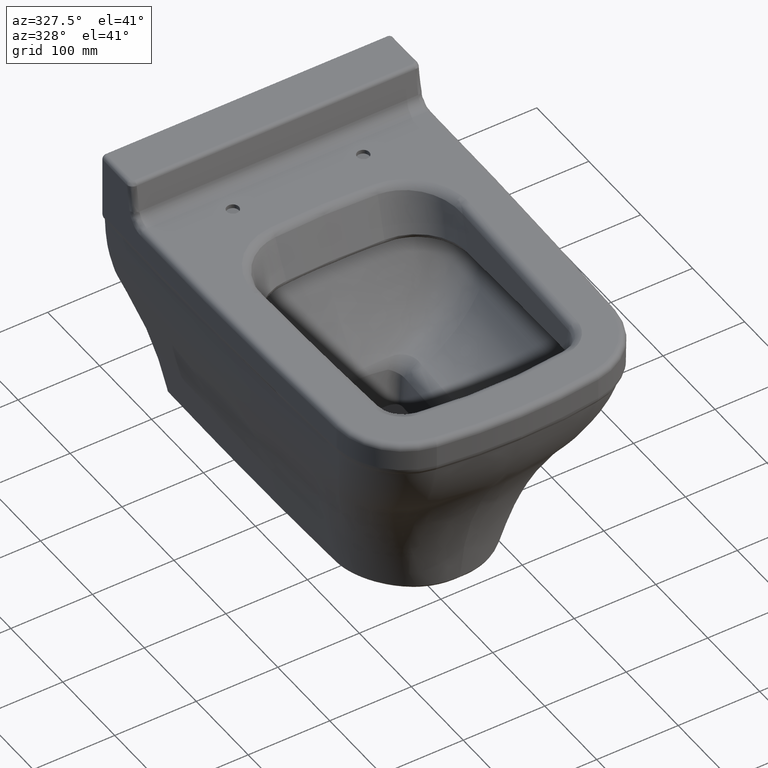
[diagram: clean part render]
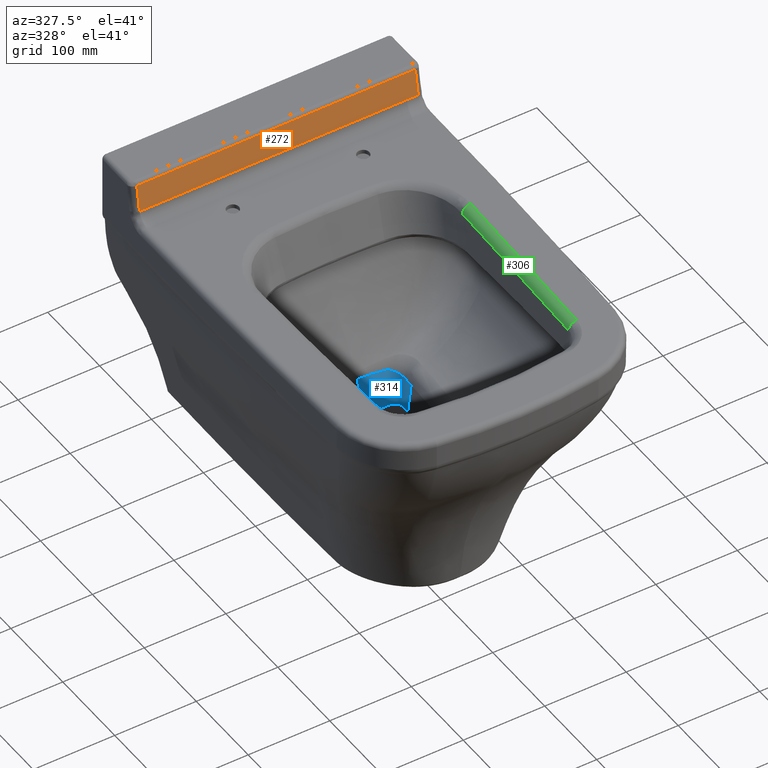
[diagram: same view with three faces highlighted in distinct colors, each labeled with its STEP entity id]
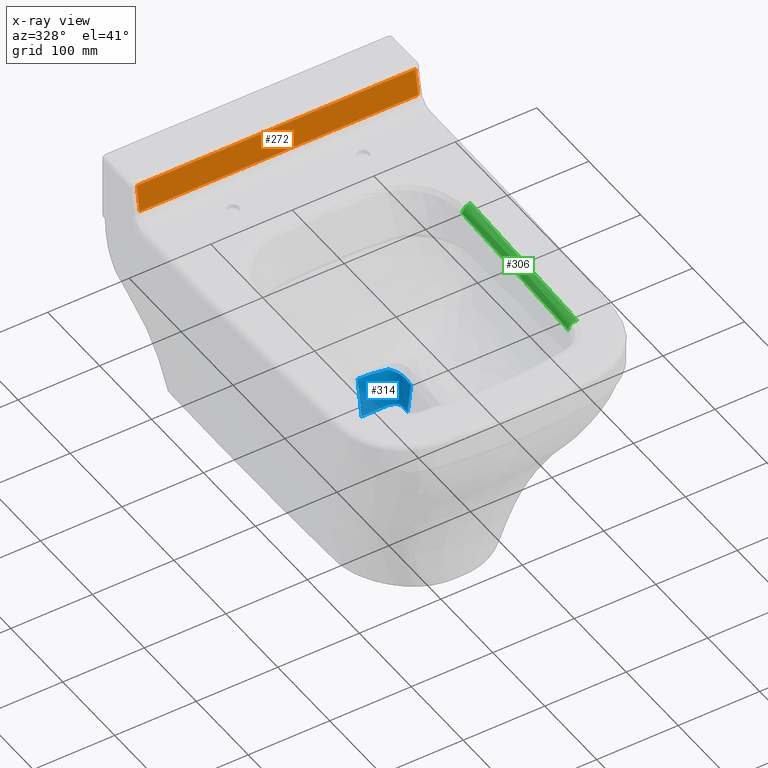
[diagram: x-ray of the same camera — body ghosted, the three highlighted faces saturated]
A machine part, auxiliary view with three faces highlighted in distinct colors.
The next image is the same camera in x-ray (body ghosted, the three faces saturated) — at least one of them is partly hidden behind the body in this view.
Their STEP definitions:

[orange] entity #272 — the highlighted planar face has unit normal (-0, -0.9847, 0.1745).
#146=PLANE('',#2093);
#163=LINE('',#3693,#180);
#164=LINE('',#3717,#181);
#180=VECTOR('',#2194,1.);
#181=VECTOR('',#2197,1.);
#272=ADVANCED_FACE('',(#432),#146,.T.);
#432=FACE_OUTER_BOUND('',#570,.T.);
#570=EDGE_LOOP('',(#964,#965,#966,#967));
#746=B_SPLINE_CURVE_WITH_KNOTS('',3,(#3815,#3816,#3817,#3818,#3819,#3820,
#3821,#3822),.UNSPECIFIED.,.F.,.F.,(4,2,2,4),(0.,0.182779933633327,0.566329030388373,
1.),.UNSPECIFIED.);
#747=B_SPLINE_CURVE_WITH_KNOTS('',3,(#3823,#3824,#3825,#3826,#3827,#3828,
#3829,#3830),.UNSPECIFIED.,.F.,.F.,(4,2,2,4),(0.,0.182779933633327,0.566329030388373,
1.),.UNSPECIFIED.);
#964=ORIENTED_EDGE('',*,*,#1760,.T.);
#965=ORIENTED_EDGE('',*,*,#1782,.T.);
#966=ORIENTED_EDGE('',*,*,#1765,.T.);
#967=ORIENTED_EDGE('',*,*,#1783,.F.);
#1571=VERTEX_POINT('',#3694);
#1572=VERTEX_POINT('',#3695);
#1575=VERTEX_POINT('',#3718);
#1576=VERTEX_POINT('',#3719);
#1760=EDGE_CURVE('',#1571,#1572,#163,.T.);
#1765=EDGE_CURVE('',#1575,#1576,#164,.T.);
#1782=EDGE_CURVE('',#1572,#1575,#746,.T.);
#1783=EDGE_CURVE('',#1571,#1576,#747,.T.);
#2093=AXIS2_PLACEMENT_3D('',#3831,#2214,#2215);
#2194=DIRECTION('',(1.,-1.0582002783065E-17,0.));
#2197=DIRECTION('',(-1.,1.0582002783065E-17,0.));
#2214=DIRECTION('',(-1.04197145053984E-17,-0.984663746457681,0.174462908413001));
#2215=DIRECTION('',(0.,-0.174462908413001,-0.984663746457681));
#3693=CARTESIAN_POINT('',(-89.2212001865866,-88.1421732707937,12.383056373805));
#3694=CARTESIAN_POINT('',(-170.89476954521,-88.1421732707937,12.383056373805));
#3695=CARTESIAN_POINT('',(170.89476954521,-88.1421732707937,12.383056373805));
#3717=CARTESIAN_POINT('',(-7.95741203852096E-18,-82.6505607587637,43.3775628816784));
#3718=CARTESIAN_POINT('',(170.855623070391,-82.6505607587638,43.3775628816784));
#3719=CARTESIAN_POINT('',(-170.855623070391,-82.6505607587638,43.3775628816784));
#3815=CARTESIAN_POINT('',(170.89476954521,-88.1421732707937,12.383056373805));
#3816=CARTESIAN_POINT('',(170.892379594061,-87.807587748343,14.2714476487394));
#3817=CARTESIAN_POINT('',(170.889967272698,-87.4730022307646,16.159838896175));
#3818=CARTESIAN_POINT('',(170.882498076617,-86.4363157183127,22.0108684046164));
#3819=CARTESIAN_POINT('',(170.877490338839,-85.7342147126216,25.973506726677));
#3820=CARTESIAN_POINT('',(170.866899117828,-84.2382627164066,34.4166177037504));
#3821=CARTESIAN_POINT('',(170.861293817652,-83.4444117304889,38.8970903327659));
#3822=CARTESIAN_POINT('',(170.855623070391,-82.6505607587638,43.3775628816784));
#3823=CARTESIAN_POINT('',(-170.89476954521,-88.1421732707937,12.383056373805));
#3824=CARTESIAN_POINT('',(-170.892379594061,-87.807587748343,14.2714476487394));
#3825=CARTESIAN_POINT('',(-170.889967272698,-87.4730022307646,16.159838896175));
#3826=CARTESIAN_POINT('',(-170.882498076617,-86.4363157183127,22.0108684046164));
#3827=CARTESIAN_POINT('',(-170.877490338839,-85.7342147126216,25.973506726677));
#3828=CARTESIAN_POINT('',(-170.866899117828,-84.2382627164066,34.4166177037504));
#3829=CARTESIAN_POINT('',(-170.861293817652,-83.4444117304889,38.8970903327659));
#3830=CARTESIAN_POINT('',(-170.855623070391,-82.6505607587638,43.3775628816784));
#3831=CARTESIAN_POINT('',(-3.40137575160707E-16,-86.7478419090374,20.2526233491547));

[blue] entity #314 — the highlighted face is a freeform B-spline surface patch.
#314=ADVANCED_FACE('',(#473),#409,.F.);
#409=B_SPLINE_SURFACE_WITH_KNOTS('',3,3,((#8382,#8383,#8384,#8385),(#8386,
#8387,#8388,#8389),(#8390,#8391,#8392,#8393),(#8394,#8395,#8396,#8397),
(#8398,#8399,#8400,#8401),(#8402,#8403,#8404,#8405),(#8406,#8407,#8408,
#8409),(#8410,#8411,#8412,#8413),(#8414,#8415,#8416,#8417),(#8418,#8419,
#8420,#8421),(#8422,#8423,#8424,#8425),(#8426,#8427,#8428,#8429),(#8430,
#8431,#8432,#8433),(#8434,#8435,#8436,#8437),(#8438,#8439,#8440,#8441),
(#8442,#8443,#8444,#8445),(#8446,#8447,#8448,#8449),(#8450,#8451,#8452,
#8453),(#8454,#8455,#8456,#8457),(#8458,#8459,#8460,#8461),(#8462,#8463,
#8464,#8465),(#8466,#8467,#8468,#8469),(#8470,#8471,#8472,#8473),(#8474,
#8475,#8476,#8477),(#8478,#8479,#8480,#8481),(#8482,#8483,#8484,#8485)),
 .UNSPECIFIED.,.F.,.F.,.F.,(4,1,1,1,1,1,1,1,1,1,1,1,1,1,1,1,1,1,1,1,1,1,
1,4),(4,4),(0.,0.25,0.4953125,0.5,0.5078125,0.515625,0.53125,0.5625,0.625,
0.640625,0.65625,0.6640625,0.671875,0.6875,0.71875,0.75,0.78125,0.8125,
0.828125,0.8359375,0.84375,0.859375,0.875,1.),(0.,1.),.UNSPECIFIED.);
#473=FACE_OUTER_BOUND('',#613,.T.);
#613=EDGE_LOOP('',(#1158,#1159,#1160,#1161,#1162));
#809=B_SPLINE_CURVE_WITH_KNOTS('',3,(#7376,#7377,#7378,#7379,#7380,#7381,
#7382,#7383,#7384,#7385,#7386,#7387,#7388,#7389,#7390,#7391,#7392,#7393,
#7394,#7395,#7396,#7397,#7398,#7399,#7400,#7401,#7402,#7403,#7404,#7405,
#7406,#7407,#7408,#7409,#7410,#7411,#7412,#7413,#7414,#7415,#7416,#7417,
#7418,#7419,#7420,#7421,#7422,#7423,#7424,#7425,#7426,#7427,#7428,#7429,
#7430,#7431,#7432,#7433,#7434,#7435,#7436,#7437,#7438),.UNSPECIFIED.,.F.,
 .F.,(4,1,1,1,1,1,2,2,1,1,1,2,2,1,2,2,2,1,1,2,2,1,2,2,2,2,1,1,2,2,1,1,1,
2,2,1,1,1,1,2,2,4),(0.,0.0625000000000528,0.0937500000000792,0.109375000000094,
0.1171875000001,0.121093750000104,0.123046875000107,0.125000000000109,0.140625000000119,
0.148437500000125,0.152343750000125,0.154296875000125,0.156250000000126,
0.171875000000123,0.179687500000122,0.187500000000121,0.250000000000114,
0.281250000000112,0.29687500000011,0.30468750000011,0.31250000000011,0.328125000000108,
0.335937500000107,0.343750000000106,0.3750000000001,0.437500000000089,0.453125000000086,
0.460937500000084,0.464843750000084,0.468750000000083,0.484375000000078,
0.492187500000076,0.496093750000075,0.498046875000074,0.500000000000073,
0.625000000000055,0.687500000000046,0.718750000000042,0.734375000000039,
0.742187500000038,0.750000000000037,1.),.UNSPECIFIED.);
#820=B_SPLINE_CURVE_WITH_KNOTS('',3,(#8295,#8296,#8297,#8298),
 .UNSPECIFIED.,.F.,.F.,(4,4),(0.,1.),.UNSPECIFIED.);
#821=B_SPLINE_CURVE_WITH_KNOTS('',3,(#8300,#8301,#8302,#8303,#8304,#8305),
 .UNSPECIFIED.,.F.,.F.,(4,2,4),(0.,1.82947137645916E-5,1.),
 .UNSPECIFIED.);
#822=B_SPLINE_CURVE_WITH_KNOTS('',3,(#8307,#8308,#8309,#8310,#8311,#8312,
#8313,#8314,#8315,#8316,#8317,#8318,#8319,#8320,#8321,#8322,#8323,#8324,
#8325,#8326,#8327,#8328,#8329,#8330,#8331,#8332,#8333,#8334,#8335,#8336,
#8337,#8338,#8339,#8340,#8341,#8342,#8343,#8344,#8345,#8346,#8347,#8348,
#8349,#8350,#8351,#8352,#8353,#8354,#8355,#8356,#8357,#8358,#8359,#8360,
#8361,#8362,#8363,#8364,#8365,#8366,#8367,#8368,#8369,#8370,#8371,#8372,
#8373,#8374,#8375,#8376),.UNSPECIFIED.,.F.,.F.,(4,2,2,1,2,2,2,2,2,2,1,1,
2,2,2,2,2,2,2,2,2,2,2,2,2,2,2,2,2,2,2,1,1,1,2,2,2,4),(0.,0.125000000000574,
0.125976562500572,0.126953125000571,0.128906250000565,0.132812500000556,
0.140625000000539,0.156250000000501,0.187500000000428,0.189453125000427,
0.191406250000427,0.195312500000427,0.203125000000423,0.218750000000417,
0.250000000000402,0.265625000000395,0.281250000000387,0.312500000000373,
0.375000000000345,0.378906250000343,0.382812500000341,0.390625000000338,
0.40625000000033,0.437500000000316,0.453125000000308,0.468750000000301,
0.472656250000299,0.476562500000297,0.484375000000293,0.500000000000284,
0.503906250000282,0.50781250000028,0.515625000000276,0.531250000000267,
0.562500000000249,0.625000000000214,0.750000000000142,1.),.UNSPECIFIED.);
#823=B_SPLINE_CURVE_WITH_KNOTS('',3,(#8378,#8379,#8380,#8381),
 .UNSPECIFIED.,.F.,.F.,(4,4),(0.,1.),.UNSPECIFIED.);
#1158=ORIENTED_EDGE('',*,*,#1887,.F.);
#1159=ORIENTED_EDGE('',*,*,#1888,.T.);
#1160=ORIENTED_EDGE('',*,*,#1889,.T.);
#1161=ORIENTED_EDGE('',*,*,#1890,.F.);
#1162=ORIENTED_EDGE('',*,*,#1875,.F.);
#1644=VERTEX_POINT('',#7439);
#1645=VERTEX_POINT('',#7440);
#1656=VERTEX_POINT('',#8299);
#1657=VERTEX_POINT('',#8306);
#1658=VERTEX_POINT('',#8377);
#1875=EDGE_CURVE('',#1644,#1645,#809,.T.);
#1887=EDGE_CURVE('',#1656,#1644,#820,.T.);
#1888=EDGE_CURVE('',#1656,#1657,#821,.T.);
#1889=EDGE_CURVE('',#1657,#1658,#822,.T.);
#1890=EDGE_CURVE('',#1645,#1658,#823,.T.);
#7376=CARTESIAN_POINT('',(43.9510565160675,-267.025828651887,-232.187247244781));
#7377=CARTESIAN_POINT('',(44.0106145617744,-265.399335401843,-232.187247256634));
#7378=CARTESIAN_POINT('',(44.0896047349921,-263.239126784244,-232.187247274486));
#7379=CARTESIAN_POINT('',(44.1636528702298,-261.208063097613,-232.187247293166));
#7380=CARTESIAN_POINT('',(44.1961501711362,-260.31482617944,-232.187247301751));
#7381=CARTESIAN_POINT('',(44.2112671299114,-259.898781451639,-232.18724730583));
#7382=CARTESIAN_POINT('',(44.2185426863794,-259.698402520559,-232.187247307813));
#7383=CARTESIAN_POINT('',(44.2216001556687,-259.614163714273,-232.18724730865));
#7384=CARTESIAN_POINT('',(44.2236249960082,-259.558368483073,-232.187247309206));
#7385=CARTESIAN_POINT('',(44.2232442151732,-259.568867493924,-232.1872473091));
#7386=CARTESIAN_POINT('',(44.2447129267237,-258.97713295086,-232.187247315009));
#7387=CARTESIAN_POINT('',(44.2676152907252,-258.347558886041,-232.187247321511));
#7388=CARTESIAN_POINT('',(44.2843201921117,-257.892015130799,-232.18724732631));
#7389=CARTESIAN_POINT('',(44.2901690119845,-257.733983083272,-232.187247327988));
#7390=CARTESIAN_POINT('',(44.2921391567542,-257.68119931221,-232.18724732855));
#7391=CARTESIAN_POINT('',(44.2933333660854,-257.649331075792,-232.18724732889));
#7392=CARTESIAN_POINT('',(44.2925158690865,-257.670820788402,-232.18724732866));
#7393=CARTESIAN_POINT('',(44.3090117491012,-257.235431995065,-232.187247333309));
#7394=CARTESIAN_POINT('',(44.3142188263255,-256.710071604559,-232.187247338876));
#7395=CARTESIAN_POINT('',(44.2942447593565,-256.267448214971,-232.187247343404));
#7396=CARTESIAN_POINT('',(44.2753329048898,-255.990751955449,-232.187247346183));
#7397=CARTESIAN_POINT('',(44.2678101853978,-255.899303726119,-232.187247347093));
#7398=CARTESIAN_POINT('',(44.0897645380459,-254.480282457143,-232.187247360666));
#7399=CARTESIAN_POINT('',(43.6797982214446,-253.316348535068,-232.187247369755));
#7400=CARTESIAN_POINT('',(42.6755069065073,-251.697576903282,-232.187247379624));
#7401=CARTESIAN_POINT('',(42.1008584859764,-250.960306947303,-232.187247383391));
#7402=CARTESIAN_POINT('',(41.3035554933313,-250.226361420177,-232.187247385808));
#7403=CARTESIAN_POINT('',(40.9346656746208,-249.93885678459,-232.187247386434));
#7404=CARTESIAN_POINT('',(40.6826972318919,-249.753196682526,-232.187247386762));
#7405=CARTESIAN_POINT('',(40.5291553929318,-249.647236141528,-232.187247386895));
#7406=CARTESIAN_POINT('',(40.2066870454773,-249.435180905794,-232.18724738708));
#7407=CARTESIAN_POINT('',(39.838928047631,-249.217722800546,-232.187247387049));
#7408=CARTESIAN_POINT('',(39.4032330741971,-248.992160391029,-232.187247386786));
#7409=CARTESIAN_POINT('',(39.0976728751105,-248.839984494846,-232.187247386572));
#7410=CARTESIAN_POINT('',(38.9103108388265,-248.750453495507,-232.187247386423));
#7411=CARTESIAN_POINT('',(38.2060933988345,-248.423721837506,-232.187247385835));
#7412=CARTESIAN_POINT('',(37.6143281004198,-248.187085107663,-232.187247385155));
#7413=CARTESIAN_POINT('',(35.8538329832385,-247.585578976684,-232.187247382648));
#7414=CARTESIAN_POINT('',(34.6382099061799,-247.302170544903,-232.187247380302));
#7415=CARTESIAN_POINT('',(33.0800162683116,-247.096722104613,-232.187247376476));
#7416=CARTESIAN_POINT('',(32.6159281676436,-247.046499047503,-232.187247375285));
#7417=CARTESIAN_POINT('',(32.0803895339097,-247.007875562086,-232.187247373803));
#7418=CARTESIAN_POINT('',(31.8521367231048,-246.995601942881,-232.187247373147));
#7419=CARTESIAN_POINT('',(31.700249015126,-246.988370486326,-232.187247372705));
#7420=CARTESIAN_POINT('',(31.5829210374721,-246.983767785553,-232.187247372357));
#7421=CARTESIAN_POINT('',(31.4122286300304,-246.977756178504,-232.187247371846));
#7422=CARTESIAN_POINT('',(31.0780090680987,-246.973064933425,-232.187247370756));
#7423=CARTESIAN_POINT('',(30.461656068092,-246.97200651008,-232.187247368849));
#7424=CARTESIAN_POINT('',(30.0968720236504,-246.972580972387,-232.187247367777));
#7425=CARTESIAN_POINT('',(29.9284058165101,-246.973063672085,-232.187247367297));
#7426=CARTESIAN_POINT('',(29.8133994143957,-246.973438027788,-232.187247366973));
#7427=CARTESIAN_POINT('',(29.7132229752946,-246.973816056689,-232.187247366696));
#7428=CARTESIAN_POINT('',(28.4864546373959,-246.978701499388,-232.187247363317));
#7429=CARTESIAN_POINT('',(25.7247022394341,-246.994882556527,-232.187247356862));
#7430=CARTESIAN_POINT('',(20.8403153982043,-247.029450316154,-232.187247355927));
#7431=CARTESIAN_POINT('',(17.9825363833542,-247.050656660876,-232.187247358206));
#7432=CARTESIAN_POINT('',(16.4497504773704,-247.062240449464,-232.187247360102));
#7433=CARTESIAN_POINT('',(15.7705787179719,-247.067415062336,-232.187247361082));
#7434=CARTESIAN_POINT('',(15.3128500974891,-247.070911500261,-232.187247361773));
#7435=CARTESIAN_POINT('',(15.0405710344007,-247.072997361373,-232.187247362204));
#7436=CARTESIAN_POINT('',(8.67583698664114,-247.12185784877,-232.187247372626));
#7437=CARTESIAN_POINT('',(3.7266035514137,-247.145566169599,-232.187247388661));
#7438=CARTESIAN_POINT('',(-2.53078970444309E-12,-247.14560294469,-232.187247398538));
#7439=CARTESIAN_POINT('',(43.9510565062086,-267.025828664825,-232.187247323901));
#7440=CARTESIAN_POINT('',(-2.54090002623263E-12,-247.145602944569,-232.187247398554));
#8295=CARTESIAN_POINT('',(48.1787059049565,-267.025828774914,-197.148258019723));
#8296=CARTESIAN_POINT('',(46.7694881416856,-267.025828686676,-208.827920937857));
#8297=CARTESIAN_POINT('',(45.3602703784148,-267.025828598437,-220.50758385599));
#8298=CARTESIAN_POINT('',(43.9510526151444,-267.025828510198,-232.18724677412));
#8299=CARTESIAN_POINT('',(48.1787119747464,-267.025828997154,-197.148258752097));
#8300=CARTESIAN_POINT('',(48.1787180444162,-267.025829222795,-197.148259484436));
#8301=CARTESIAN_POINT('',(48.1787187551105,-267.025809236191,-197.148259659303));
#8302=CARTESIAN_POINT('',(48.1787194658048,-267.025789249587,-197.14825983417));
#8303=CARTESIAN_POINT('',(48.2175664374091,-265.933309522958,-197.157818149797));
#8304=CARTESIAN_POINT('',(48.256315672053,-264.840844620471,-197.167183424051));
#8305=CARTESIAN_POINT('',(48.2949481258705,-263.748373912409,-197.176346346914));
#8306=CARTESIAN_POINT('',(48.2949481258705,-263.748373912409,-197.176346346914));
#8307=CARTESIAN_POINT('',(48.2949489360977,-263.748373884803,-197.176339639558));
#8308=CARTESIAN_POINT('',(48.4585307256057,-259.122470191991,-197.215151541565));
#8309=CARTESIAN_POINT('',(48.5801745834791,-256.378692473279,-197.161047899964));
#8310=CARTESIAN_POINT('',(48.6077168323598,-255.489133893405,-197.015481929566));
#8311=CARTESIAN_POINT('',(48.6096065683737,-255.423066457398,-197.004669304281));
#8312=CARTESIAN_POINT('',(48.611226871156,-255.350804571743,-196.992838207414));
#8313=CARTESIAN_POINT('',(48.6131804396549,-255.243114669827,-196.975201508961));
#8314=CARTESIAN_POINT('',(48.6137603657157,-255.137547721421,-196.957894651421));
#8315=CARTESIAN_POINT('',(48.6132362843666,-254.929277172605,-196.923720722652));
#8316=CARTESIAN_POINT('',(48.6106432028334,-254.794249498907,-196.901524485986));
#8317=CARTESIAN_POINT('',(48.5972569907029,-254.400826133772,-196.836694880834));
#8318=CARTESIAN_POINT('',(48.5808801549111,-254.15411501944,-196.795820625948));
#8319=CARTESIAN_POINT('',(48.5175167886649,-253.461406689663,-196.68023357953));
#8320=CARTESIAN_POINT('',(48.4566592534715,-253.062955397252,-196.612556552921));
#8321=CARTESIAN_POINT('',(48.2696999496198,-252.055320999559,-196.437659105077));
#8322=CARTESIAN_POINT('',(48.1442771038895,-251.633019046302,-196.358571124188));
#8323=CARTESIAN_POINT('',(48.0866931385724,-251.432037787057,-196.314369751253));
#8324=CARTESIAN_POINT('',(48.0674305797632,-251.365456575331,-196.299629645273));
#8325=CARTESIAN_POINT('',(48.0442398339998,-251.287119248325,-196.282012090214));
#8326=CARTESIAN_POINT('',(48.0089125709517,-251.169681467915,-196.255308395948));
#8327=CARTESIAN_POINT('',(47.9226890701459,-250.896177441942,-196.191058384321));
#8328=CARTESIAN_POINT('',(47.8422628981743,-250.662770392487,-196.132659329395));
#8329=CARTESIAN_POINT('',(47.6726715466794,-250.197698838012,-196.011425726443));
#8330=CARTESIAN_POINT('',(47.5479156988276,-249.889989641731,-195.924689318505));
#8331=CARTESIAN_POINT('',(47.1390496904736,-248.976639865002,-195.646749244833));
#8332=CARTESIAN_POINT('',(46.8203393193713,-248.380776843528,-195.437814469865));
#8333=CARTESIAN_POINT('',(46.2760572157695,-247.517786317331,-195.088999391165));
#8334=CARTESIAN_POINT('',(46.1375238919122,-247.314797562029,-195.0014069713));
#8335=CARTESIAN_POINT('',(45.7900125554473,-246.832384595547,-194.783584952938));
#8336=CARTESIAN_POINT('',(45.6070243968071,-246.594202139089,-194.670022381061));
#8337=CARTESIAN_POINT('',(45.0303504586997,-245.891289450704,-194.315390354903));
#8338=CARTESIAN_POINT('',(44.6091150517849,-245.439990043001,-194.06037633655));
#8339=CARTESIAN_POINT('',(43.2373675280938,-244.130011232966,-193.239648245982));
#8340=CARTESIAN_POINT('',(42.1757477474999,-243.317992578369,-192.618244002831));
#8341=CARTESIAN_POINT('',(40.9014187332074,-242.590165867805,-191.879421868571));
#8342=CARTESIAN_POINT('',(40.8808461097953,-242.578711004788,-191.867398284101));
#8343=CARTESIAN_POINT('',(40.7812811436802,-242.523130185914,-191.809312006458));
#8344=CARTESIAN_POINT('',(40.7301481015581,-242.494915929666,-191.779401400904));
#8345=CARTESIAN_POINT('',(40.5726372576091,-242.40913303306,-191.687067717608));
#8346=CARTESIAN_POINT('',(40.4621476283759,-242.350421327368,-191.622042762525));
#8347=CARTESIAN_POINT('',(40.1137509206552,-242.17087043952,-191.416565048111));
#8348=CARTESIAN_POINT('',(39.8589066778536,-242.04656228299,-191.265709261144));
#8349=CARTESIAN_POINT('',(39.0229718072889,-241.670832768887,-190.771573445031));
#8350=CARTESIAN_POINT('',(38.3698747840951,-241.416297154559,-190.386721921065));
#8351=CARTESIAN_POINT('',(37.2380160918362,-241.084049825735,-189.726529962355));
#8352=CARTESIAN_POINT('',(36.9293012098744,-241.011550539967,-189.573835867111));
#8353=CARTESIAN_POINT('',(36.2964438001907,-240.890246817793,-189.311611193849));
#8354=CARTESIAN_POINT('',(35.9984083206788,-240.850133358065,-189.217331890629));
#8355=CARTESIAN_POINT('',(35.650650742923,-240.818755894962,-189.145491969482));
#8356=CARTESIAN_POINT('',(35.6631561176294,-240.820053400801,-189.148797537901));
#8357=CARTESIAN_POINT('',(35.5827831467242,-240.813703010377,-189.135087384259));
#8358=CARTESIAN_POINT('',(35.5348173743694,-240.810110412228,-189.127349780165));
#8359=CARTESIAN_POINT('',(35.367550988549,-240.798441267184,-189.101490038156));
#8360=CARTESIAN_POINT('',(35.2248701709725,-240.789608888889,-189.080720907498));
#8361=CARTESIAN_POINT('',(34.70327573064,-240.760218700649,-189.007833064435));
#8362=CARTESIAN_POINT('',(34.230963504926,-240.735025066198,-188.945132832818));
#8363=CARTESIAN_POINT('',(33.4842735023253,-240.695929644879,-188.849162500714));
#8364=CARTESIAN_POINT('',(33.4313615777498,-240.693177325636,-188.842400509578));
#8365=CARTESIAN_POINT('',(33.2294090406404,-240.682675575581,-188.816598574718));
#8366=CARTESIAN_POINT('',(32.9267778117196,-240.666992566458,-188.77804978594));
#8367=CARTESIAN_POINT('',(32.2227252717143,-240.630885408312,-188.689181212582));
#8368=CARTESIAN_POINT('',(30.8229996379286,-240.560611076943,-188.515756887139));
#8369=CARTESIAN_POINT('',(29.6377068544408,-240.503681215065,-188.374495318303));
#8370=CARTESIAN_POINT('',(27.2866959106366,-240.394177582367,-188.101807001678));
#8371=CARTESIAN_POINT('',(25.745457602591,-240.326983399009,-187.933127909403));
#8372=CARTESIAN_POINT('',(21.2021765181826,-240.142436251853,-187.466299314903));
#8373=CARTESIAN_POINT('',(18.2806134267365,-240.042146400796,-187.207353391469));
#8374=CARTESIAN_POINT('',(9.85317521275636,-239.805909452469,-186.586363362683));
#8375=CARTESIAN_POINT('',(4.6852828870125,-239.735275533197,-186.380016227792));
#8376=CARTESIAN_POINT('',(-2.54108068146272E-12,-239.735243370674,-186.380085129835));
#8377=CARTESIAN_POINT('',(0.,-239.735278554243,-186.380078426285));
#8378=CARTESIAN_POINT('',(-2.54108068146272E-12,-253.134653698626,-295.294685706518));
#8379=CARTESIAN_POINT('',(-2.54108068146272E-12,-251.063238736494,-258.748354691095));
#8380=CARTESIAN_POINT('',(-2.54108068146272E-12,-246.583530232229,-222.338748140484));
#8381=CARTESIAN_POINT('',(-2.54108068146272E-12,-239.735243370674,-186.380085129834));
#8382=CARTESIAN_POINT('',(-2.54108068146272E-12,-238.899295365503,-182.053005643977));
#8383=CARTESIAN_POINT('',(-2.54108068146272E-12,-246.220092213004,-219.416588062466));
#8384=CARTESIAN_POINT('',(-2.54108068146272E-12,-250.980108721954,-257.281677523932));
#8385=CARTESIAN_POINT('',(-2.54108068146272E-12,-253.134653698626,-295.294685706518));
#8386=CARTESIAN_POINT('',(5.95047363679475,-238.899295613223,-182.053006908286));
#8387=CARTESIAN_POINT('',(5.29761741234418,-246.218783112791,-219.406777791552));
#8388=CARTESIAN_POINT('',(4.64347190301198,-250.981268587865,-257.291507787753));
#8389=CARTESIAN_POINT('',(3.98427375781378,-253.134653707264,-295.294685858898));
#8390=CARTESIAN_POINT('',(17.7398573460209,-239.021098606647,-182.053006644321));
#8391=CARTESIAN_POINT('',(15.7890569517263,-246.104111102974,-219.428493334374));
#8392=CARTESIAN_POINT('',(13.8370402451728,-250.845311345394,-257.322877546061));
#8393=CARTESIAN_POINT('',(11.878117511825,-253.189020711914,-295.294684781792));
#8394=CARTESIAN_POINT('',(29.6357989063872,-239.386445974404,-182.053005014041));
#8395=CARTESIAN_POINT('',(26.3718156880452,-245.922055341616,-219.50203304788));
#8396=CARTESIAN_POINT('',(23.1089614031843,-250.592671859347,-257.369643806041));
#8397=CARTESIAN_POINT('',(19.8451626831168,-253.352820567066,-295.294683641288));
#8398=CARTESIAN_POINT('',(35.7670452941764,-239.63751514205,-182.053004884589));
#8399=CARTESIAN_POINT('',(31.8267163441052,-245.851174377264,-219.545549308704));
#8400=CARTESIAN_POINT('',(27.8885549636648,-250.473469652023,-257.395468302203));
#8401=CARTESIAN_POINT('',(23.9523955154519,-253.465645320021,-295.29468293743));
#8402=CARTESIAN_POINT('',(36.2501754687973,-239.658211426845,-182.053004875805));
#8403=CARTESIAN_POINT('',(32.2565376068613,-245.846128563126,-219.548999321978));
#8404=CARTESIAN_POINT('',(28.2651484169659,-250.464346776006,-257.39750953107));
#8405=CARTESIAN_POINT('',(24.2759926317108,-253.474645402592,-295.294682881849));
#8406=CARTESIAN_POINT('',(36.9922631426215,-239.707567818439,-182.053004862513));
#8407=CARTESIAN_POINT('',(32.9170077500655,-245.849915751135,-219.554346410207));
#8408=CARTESIAN_POINT('',(28.8441242157473,-250.456090596705,-257.400661984487));
#8409=CARTESIAN_POINT('',(24.7738283948358,-253.488704964146,-295.294682795979));
#8410=CARTESIAN_POINT('',(38.2839931797237,-239.877920306059,-182.053004840657));
#8411=CARTESIAN_POINT('',(34.0682147560083,-245.912220426567,-219.563802212398));
#8412=CARTESIAN_POINT('',(29.8550191187042,-250.469504374287,-257.406209138705));
#8413=CARTESIAN_POINT('',(25.6450251314377,-253.513868458727,-295.2946826449));
#8414=CARTESIAN_POINT('',(40.819740104413,-240.496749884847,-182.053004802987));
#8415=CARTESIAN_POINT('',(36.3388255172326,-246.221203528618,-219.583067700457));
#8416=CARTESIAN_POINT('',(31.8608931223157,-250.588700027838,-257.417413645975));
#8417=CARTESIAN_POINT('',(27.3873548615695,-253.566394159086,-295.294682339968));
#8418=CARTESIAN_POINT('',(43.174516006861,-241.673590065002,-182.053004779134));
#8419=CARTESIAN_POINT('',(38.4888177288578,-246.901038276746,-219.602882126008));
#8420=CARTESIAN_POINT('',(33.8064407087473,-250.894272355799,-257.428793574536));
#8421=CARTESIAN_POINT('',(29.1295356315345,-253.623644346967,-295.294682031513));
#8422=CARTESIAN_POINT('',(44.9526713185606,-243.024212206899,-182.053004771026));
#8423=CARTESIAN_POINT('',(40.1715764056348,-247.711913359651,-219.620031117736));
#8424=CARTESIAN_POINT('',(35.3940282220761,-251.271373784614,-257.438608847967));
#8425=CARTESIAN_POINT('',(30.62273119625,-253.67572328454,-295.294681767477));
#8426=CARTESIAN_POINT('',(45.6498047240717,-243.640404810258,-182.053004769807));
#8427=CARTESIAN_POINT('',(40.8435107315491,-248.085999569926,-219.627194609864));
#8428=CARTESIAN_POINT('',(36.0408456364714,-251.447588704428,-257.442706042889));
#8429=CARTESIAN_POINT('',(31.2447296555125,-253.69946304349,-295.294681657641));
#8430=CARTESIAN_POINT('',(46.1790162825695,-244.163288747281,-182.053004770189));
#8431=CARTESIAN_POINT('',(41.3622475747965,-248.403587827445,-219.632930578416));
#8432=CARTESIAN_POINT('',(36.5491658805071,-251.595288274337,-257.445986691122));
#8433=CARTESIAN_POINT('',(31.7428540678132,-253.713610368429,-295.29468156995));
#8434=CARTESIAN_POINT('',(46.6884856033626,-244.705415863124,-182.053004771496));
#8435=CARTESIAN_POINT('',(41.8675230852862,-248.738276565278,-219.638668106036));
#8436=CARTESIAN_POINT('',(37.0503004339833,-251.7579486324,-257.449268732121));
#8437=CARTESIAN_POINT('',(32.2400561774126,-253.740581699303,-295.294681482404));
#8438=CARTESIAN_POINT('',(47.5262767071439,-245.702787759574,-182.053004776267));
#8439=CARTESIAN_POINT('',(42.7130507466994,-249.390730689497,-219.64870790849));
#8440=CARTESIAN_POINT('',(37.9036428490926,-252.12743517248,-257.455014554362));
#8441=CARTESIAN_POINT('',(33.101544704779,-253.89067560629,-295.294681329635));
#8442=CARTESIAN_POINT('',(48.5582814986356,-247.255952304112,-182.053004790486));
#8443=CARTESIAN_POINT('',(43.7882011425104,-250.498416215481,-219.663019632719));
#8444=CARTESIAN_POINT('',(39.0220069517582,-252.877948492057,-257.463221270337));
#8445=CARTESIAN_POINT('',(34.2634922179572,-254.374632292017,-295.294681113005));
#8446=CARTESIAN_POINT('',(49.5081487552619,-249.281853434445,-182.053004820382));
#8447=CARTESIAN_POINT('',(44.8085149690792,-252.064996506238,-219.680053580742));
#8448=CARTESIAN_POINT('',(40.1127704790875,-254.090405778468,-257.473041066293));
#8449=CARTESIAN_POINT('',(35.4249581412082,-255.34089043403,-295.29468085677));
#8450=CARTESIAN_POINT('',(50.1446824535316,-251.426605839177,-182.053004864101));
#8451=CARTESIAN_POINT('',(45.5080850779214,-253.811795190576,-219.696856647787));
#8452=CARTESIAN_POINT('',(40.8752927146765,-255.543217429437,-257.482806898245));
#8453=CARTESIAN_POINT('',(36.250469165392,-256.606338515057,-295.294680605401));
#8454=CARTESIAN_POINT('',(50.4066974564744,-253.272792631666,-182.053004912872));
#8455=CARTESIAN_POINT('',(45.798426891437,-255.360055775513,-219.710591169573));
#8456=CARTESIAN_POINT('',(41.193810904691,-256.878780748463,-257.49087870421));
#8457=CARTESIAN_POINT('',(36.5969933522802,-257.816569149429,-295.294680400942));
#8458=CARTESIAN_POINT('',(50.4453401574195,-254.574963731831,-182.053004953921));
#8459=CARTESIAN_POINT('',(45.8399637158658,-256.459874785157,-219.720024909457));
#8460=CARTESIAN_POINT('',(41.2380905852283,-257.834966091649,-257.496482870935));
#8461=CARTESIAN_POINT('',(36.6437801600392,-258.689282236332,-295.294680260943));
#8462=CARTESIAN_POINT('',(50.4244114053329,-255.318449420017,-182.053004979419));
#8463=CARTESIAN_POINT('',(45.8182145211997,-257.087881076923,-219.725358395374));
#8464=CARTESIAN_POINT('',(41.2154208256461,-258.380748475881,-257.499670474938));
#8465=CARTESIAN_POINT('',(36.620020290379,-259.1869043717,-295.294680181929));
#8466=CARTESIAN_POINT('',(50.3945783697707,-256.061759883822,-182.0530050063));
#8467=CARTESIAN_POINT('',(45.7929449453197,-257.7160200545,-219.730651842065));
#8468=CARTESIAN_POINT('',(41.1946052807536,-258.926763258404,-257.502847692182));
#8469=CARTESIAN_POINT('',(36.6034654801001,-259.684638975141,-295.294680103591));
#8470=CARTESIAN_POINT('',(50.3625616323482,-256.990936839343,-182.053005042527));
#8471=CARTESIAN_POINT('',(45.764157077437,-258.501624078635,-219.737190031565));
#8472=CARTESIAN_POINT('',(41.1688917024952,-259.609695094062,-257.506798734617));
#8473=CARTESIAN_POINT('',(36.5805390576286,-260.306772844675,-295.294680006967));
#8474=CARTESIAN_POINT('',(50.2300012987092,-260.707630522874,-182.053005726508));
#8475=CARTESIAN_POINT('',(45.6469976136232,-261.646455930319,-219.762886022711));
#8476=CARTESIAN_POINT('',(41.0664162112515,-262.343898102872,-257.522483149858));
#8477=CARTESIAN_POINT('',(36.4913458139293,-262.795343992176,-295.294679629746));
#8478=CARTESIAN_POINT('',(50.1089101893528,-264.052585509813,-182.05299701036));
#8479=CARTESIAN_POINT('',(45.540532826736,-264.487311479,-219.784001660273));
#8480=CARTESIAN_POINT('',(40.9735184122206,-264.815387858649,-257.536066881712));
#8481=CARTESIAN_POINT('',(36.4096857026515,-265.035021213307,-295.294679288992));
#8482=CARTESIAN_POINT('',(50.0000481741717,-267.025829406393,-182.053005643923));
#8483=CARTESIAN_POINT('',(45.445626103178,-267.025828947287,-219.800230123055));
#8484=CARTESIAN_POINT('',(40.8912040321892,-267.02582848818,-257.547454602147));
#8485=CARTESIAN_POINT('',(36.3367819611843,-267.025828029074,-295.294679081373));

[green] entity #306 — the highlighted face is a freeform B-spline surface patch.
#60=(
BOUNDED_SURFACE()
B_SPLINE_SURFACE(3,2,((#5858,#5859,#5860),(#5861,#5862,#5863),(#5864,#5865,
#5866),(#5867,#5868,#5869)),.UNSPECIFIED.,.F.,.F.,.F.)
B_SPLINE_SURFACE_WITH_KNOTS((4,4),(3,3),(0.,1.),(0.,1.),.UNSPECIFIED.)
GEOMETRIC_REPRESENTATION_ITEM()
RATIONAL_B_SPLINE_SURFACE(((1.,0.723678808790953,1.),(1.,0.723676478136036,
1.),(1.,0.723672000996493,1.),(1.,0.723665377217187,1.)))
REPRESENTATION_ITEM('')
SURFACE()
);
#229=CIRCLE('',#2121,10.);
#230=CIRCLE('',#2122,10.);
#306=ADVANCED_FACE('',(#465),#60,.F.);
#465=FACE_OUTER_BOUND('',#605,.T.);
#605=EDGE_LOOP('',(#1120,#1121,#1122,#1123));
#732=B_SPLINE_CURVE_WITH_KNOTS('',3,(#3640,#3641,#3642,#3643),
 .UNSPECIFIED.,.F.,.F.,(4,4),(0.,1.),.UNSPECIFIED.);
#1120=ORIENTED_EDGE('',*,*,#1866,.T.);
#1121=ORIENTED_EDGE('',*,*,#1753,.F.);
#1122=ORIENTED_EDGE('',*,*,#1867,.F.);
#1123=ORIENTED_EDGE('',*,*,#1828,.F.);
#1564=VERTEX_POINT('',#3639);
#1565=VERTEX_POINT('',#3644);
#1615=VERTEX_POINT('',#4881);
#1618=VERTEX_POINT('',#4951);
#1753=EDGE_CURVE('',#1564,#1565,#732,.T.);
#1828=EDGE_CURVE('',#1615,#1618,#2035,.T.);
#1866=EDGE_CURVE('',#1615,#1565,#229,.T.);
#1867=EDGE_CURVE('',#1618,#1564,#230,.T.);
#2035=(
BOUNDED_CURVE()
B_SPLINE_CURVE(3,(#5082,#5083,#5084,#5085),.UNSPECIFIED.,.F.,.F.)
B_SPLINE_CURVE_WITH_KNOTS((4,4),(0.,1.),.UNSPECIFIED.)
CURVE()
GEOMETRIC_REPRESENTATION_ITEM()
RATIONAL_B_SPLINE_CURVE((1.,0.999934319882474,0.999934319882474,1.))
REPRESENTATION_ITEM('')
);
#2121=AXIS2_PLACEMENT_3D('',#5820,#2278,#2279);
#2122=AXIS2_PLACEMENT_3D('',#5857,#2280,#2281);
#2278=DIRECTION('',(0.0432948363314713,0.999062338969411,0.));
#2279=DIRECTION('',(-0.999062338969411,0.04329483633147,0.));
#2280=DIRECTION('',(0.0152333411012423,0.999883965927494,1.05458949087991E-13));
#2281=DIRECTION('',(-0.999883965927494,0.0152333411012423,0.));
#3639=CARTESIAN_POINT('',(132.22637088864,-249.658824672695,0.));
#3640=CARTESIAN_POINT('',(132.22637088864,-249.658824672695,0.));
#3641=CARTESIAN_POINT('',(131.138117800051,-321.089432503245,0.));
#3642=CARTESIAN_POINT('',(129.047523571638,-392.490692271783,0.));
#3643=CARTESIAN_POINT('',(125.954588210671,-463.862603978522,0.));
#3644=CARTESIAN_POINT('',(125.954588210671,-463.862603978522,0.));
#4881=CARTESIAN_POINT('',(115.975186414619,-463.430141908246,-9.5261684363424));
#4951=CARTESIAN_POINT('',(122.238780500458,-249.506662645553,-9.52577963413816));
#5082=CARTESIAN_POINT('',(115.975195645011,-463.430141908246,-9.52597403441285));
#5083=CARTESIAN_POINT('',(119.063982246235,-392.153966089756,-9.52597403441285));
#5084=CARTESIAN_POINT('',(121.151977927749,-320.841455854803,-9.52597403441285));
#5085=CARTESIAN_POINT('',(122.238771270149,-249.506662645548,-9.52597403441285));
#5820=CARTESIAN_POINT('',(125.954588210671,-463.862603978522,-10.0000000000001));
#5857=CARTESIAN_POINT('',(132.22637088864,-249.658824672694,-10.));
#5858=CARTESIAN_POINT('',(132.22637088864,-249.658824672694,1.73472347597681E-15));
#5859=CARTESIAN_POINT('',(122.690968692278,-249.513551781895,2.60208521396521E-15));
#5860=CARTESIAN_POINT('',(122.238780500459,-249.506662645552,-9.52577963413813));
#5861=CARTESIAN_POINT('',(131.13811779336,-321.089428328366,1.73472347597681E-15));
#5862=CARTESIAN_POINT('',(121.60400719564,-320.855144657141,-1.10369992414845E-10));
#5863=CARTESIAN_POINT('',(121.151948321061,-320.843794768856,-9.52584710090664));
#5864=CARTESIAN_POINT('',(129.04752334781,-392.490696439966,1.73472347597681E-15));
#5865=CARTESIAN_POINT('',(119.515875941955,-392.167628853668,-1.80077638201787E-10));
#5866=CARTESIAN_POINT('',(119.064083371921,-392.151629614579,-9.52597669994264));
#5867=CARTESIAN_POINT('',(125.954588210671,-463.862603978523,1.73472347597681E-15));
#5868=CARTESIAN_POINT('',(116.426650191619,-463.449706303352,1.73472347597681E-15));
#5869=CARTESIAN_POINT('',(115.975186414619,-463.430141908246,-9.52616843634212));